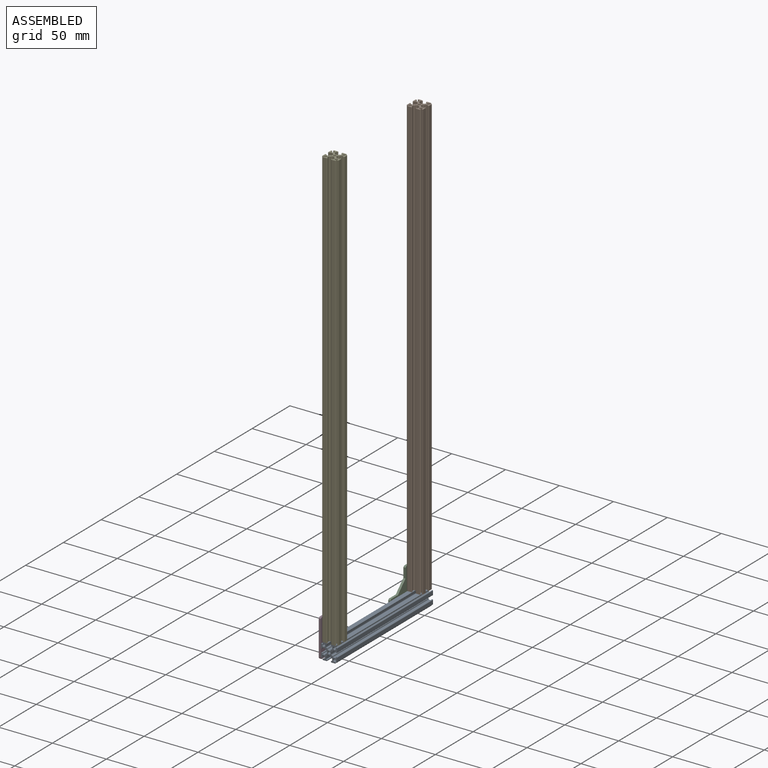
[diagram: assembled view]
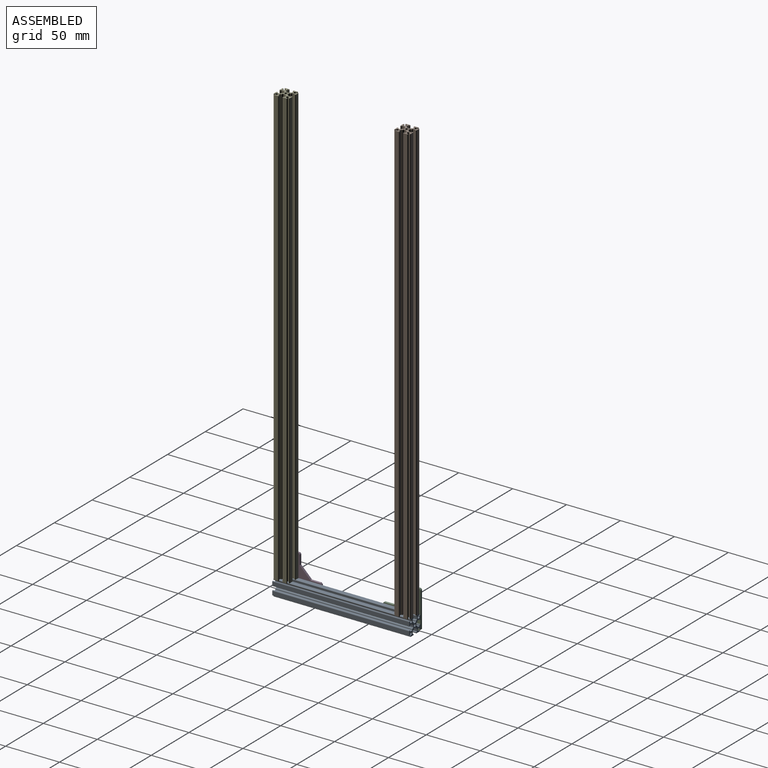
[diagram: assembled view, second angle]
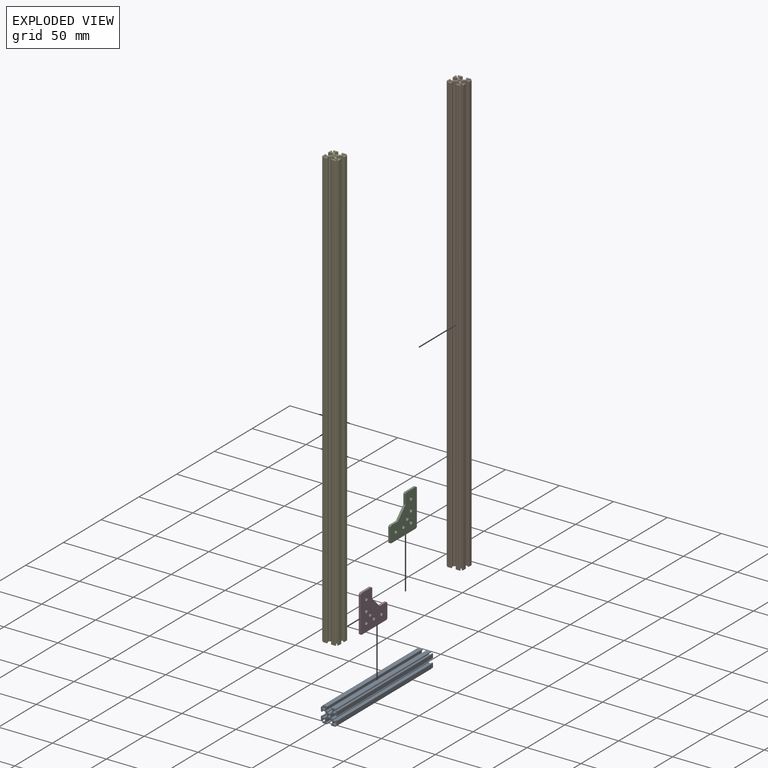
[diagram: exploded view]
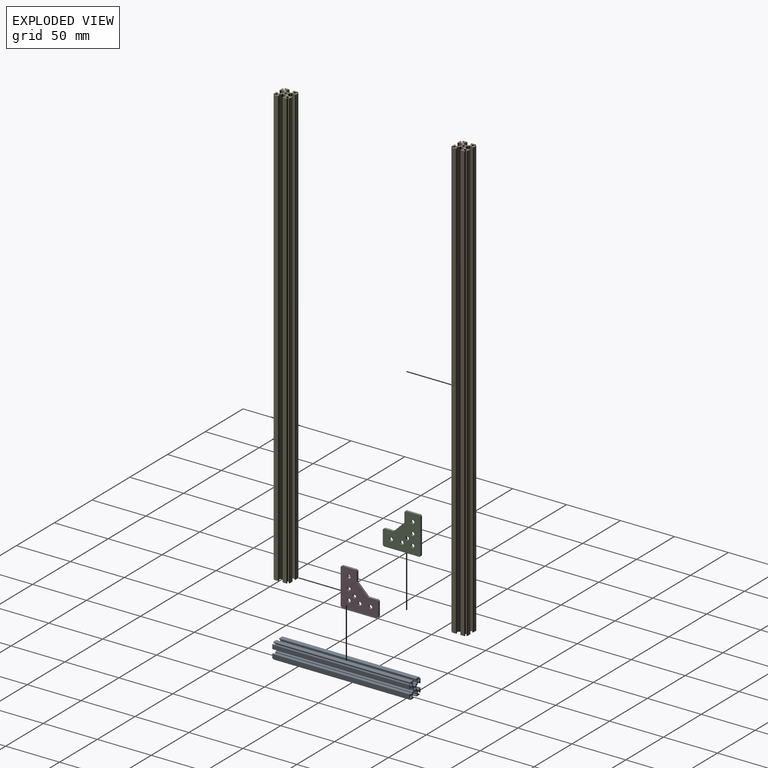
[diagram: exploded view, second angle]
ASSEMBLY  parts=5 mates=12
PART A: 115 faces, bbox 15x127x15 mm
  f0: plane 127x3.34mm, normal (1,0,0), area 423.7mm2, adj f23,f70,f112,f114
  f1: plane 127x3.34mm, normal (0,0,-1), area 423.7mm2, adj f16,f23,f77,f114
  f2: plane 127x3.34mm, normal (-1,0,0), area 423.7mm2, adj f23,f58,f109,f114
  f3: plane 127x3.34mm, normal (0,0,1), area 423.7mm2, adj f23,f65,f111,f114
  f4: plane 127x3.34mm, normal (-1,0,0), area 423.7mm2, adj f23,f62,f113,f114
  f5: plane 127x3.34mm, normal (0,0,-1), area 423.7mm2, adj f17,f23,f73,f114
  f6: plane 127x3.34mm, normal (1,0,0), area 423.7mm2, adj f23,f69,f110,f114
  f7: plane 127x3.34mm, normal (0,0,1), area 423.7mm2, adj f23,f63,f108,f114
  f8: plane 127x0.2mm, normal (-1,0,0), area 25.4mm2, adj f23,f65,f66,f114
  f9: plane 127x0.2mm, normal (1,0,0), area 25.4mm2, adj f23,f63,f64,f114
  f10: plane 127x0.2mm, normal (0,0,-1), area 25.4mm2, adj f23,f58,f59,f114
  f11: plane 127x0.2mm, normal (0,0,1), area 25.4mm2, adj f23,f61,f62,f114
  f12: plane 127x0.2mm, normal (1,0,0), area 25.4mm2, adj f23,f76,f77,f114
  f13: plane 127x0.2mm, normal (-1,0,0), area 25.4mm2, adj f23,f73,f74,f114
  f14: plane 127x0.2mm, normal (0,0,1), area 25.4mm2, adj f23,f70,f71,f114
  f15: plane 127x0.2mm, normal (0,0,-1), area 25.4mm2, adj f23,f68,f69,f114
  f16: cylinder r=0.5mm len=127mm, axis (0,1,0), area 149.6mm2, adj f1,f23,f53,f114
  f17: cylinder r=0.5mm len=127mm, axis (0,-1,0), area 149.6mm2, adj f5,f23,f102,f114
  f18: cylinder r=1.25mm len=127mm, axis (0,1,0), area 866.8mm2, adj f23,f104,f105,f114
  f19: cylinder r=1.25mm len=127mm, axis (0,1,0), area 866.8mm2, adj f23,f106,f107,f114
  f20: cylinder r=1.25mm len=127mm, axis (0,1,0), area 866.8mm2, adj f23,f52,f53,f114
  f21: cylinder r=1.25mm len=127mm, axis (0,1,0), area 866.8mm2, adj f23,f102,f103,f114
  f22: cylinder r=1.25mm len=127mm, axis (0,-1,0), area 997.5mm2, adj f23,f114
  f23: plane 15x15mm, normal (0,1,0), area 90.8mm2, adj f0,f1,f2,f3,f4,f5,f6,f7
  f24: plane 127x0.25mm, normal (0,0,1), area 31.8mm2, adj f23,f55,f80,f114
  f25: plane 127x1.2mm, normal (0,0,1), area 152.4mm2, adj f23,f86,f87,f114
  f26: plane 127x0.25mm, normal (0,0,1), area 31.8mm2, adj f23,f67,f79,f114
  f27: plane 127x2.1mm, normal (-1,0,0), area 266.7mm2, adj f23,f67,f100,f114
  f28: plane 127x0.4mm, normal (0,0,-1), area 50.8mm2, adj f23,f66,f100,f114
  f29: plane 127x0.4mm, normal (0,0,-1), area 50.8mm2, adj f23,f64,f101,f114
  f30: plane 127x2.1mm, normal (1,0,0), area 266.7mm2, adj f23,f55,f101,f114
  f31: plane 127x0.25mm, normal (-1,0,0), area 31.8mm2, adj f23,f54,f81,f114
  f32: plane 127x1.2mm, normal (-1,0,0), area 152.4mm2, adj f23,f88,f89,f114
  f33: plane 127x0.25mm, normal (-1,0,0), area 31.8mm2, adj f23,f60,f78,f114
  f34: plane 127x2.1mm, normal (0,0,-1), area 266.7mm2, adj f23,f60,f94,f114
  f35: plane 127x0.4mm, normal (1,0,0), area 50.8mm2, adj f23,f59,f94,f114
  f36: plane 127x0.4mm, normal (1,0,0), area 50.8mm2, adj f23,f61,f95,f114
  f37: plane 127x2.1mm, normal (0,0,1), area 266.7mm2, adj f23,f54,f95,f114
  f38: plane 127x0.25mm, normal (0,0,-1), area 31.8mm2, adj f23,f57,f83,f114
  f39: plane 127x1.2mm, normal (0,0,-1), area 152.4mm2, adj f23,f90,f91,f114
  f40: plane 127x0.25mm, normal (0,0,-1), area 31.8mm2, adj f23,f75,f82,f114
  f41: plane 127x2.1mm, normal (1,0,0), area 266.7mm2, adj f23,f75,f96,f114
  f42: plane 127x0.4mm, normal (0,0,1), area 50.8mm2, adj f23,f76,f96,f114
  f43: plane 127x0.4mm, normal (0,0,1), area 50.8mm2, adj f23,f74,f97,f114
  f44: plane 127x2.1mm, normal (-1,0,0), area 266.7mm2, adj f23,f57,f97,f114
  f45: plane 127x0.25mm, normal (1,0,0), area 31.8mm2, adj f23,f56,f84,f114
  f46: plane 127x1.2mm, normal (1,0,0), area 152.4mm2, adj f23,f92,f93,f114
  f47: plane 127x0.25mm, normal (1,0,0), area 31.8mm2, adj f23,f72,f85,f114
  f48: plane 127x2.1mm, normal (0,0,1), area 266.7mm2, adj f23,f72,f98,f114
  f49: plane 127x0.4mm, normal (-1,0,0), area 50.8mm2, adj f23,f71,f98,f114
  f50: plane 127x0.4mm, normal (-1,0,0), area 50.8mm2, adj f23,f68,f99,f114
  f51: plane 127x2.1mm, normal (0,0,-1), area 266.7mm2, adj f23,f56,f99,f114
  f52: plane 127x0.48mm, normal (0.71,0,-0.71), area 86.7mm2, adj f20,f23,f113,f114
  f53: plane 127x0.48mm, normal (-0.71,0,0.71), area 86.7mm2, adj f16,f20,f23,f114
  f54: cylinder r=0.5mm len=127mm, axis (0,-1,0), area 99.7mm2, adj f23,f31,f37,f114
  f55: cylinder r=0.5mm len=127mm, axis (0,-1,0), area 99.7mm2, adj f23,f24,f30,f114
  f56: cylinder r=0.5mm len=127mm, axis (0,-1,0), area 99.7mm2, adj f23,f45,f51,f114
  f57: cylinder r=0.5mm len=127mm, axis (0,-1,0), area 99.7mm2, adj f23,f38,f44,f114
  f58: cylinder r=0.5mm len=127mm, axis (0,1,0), area 99.7mm2, adj f2,f10,f23,f114
  f59: cylinder r=0.5mm len=127mm, axis (0,1,0), area 99.7mm2, adj f10,f23,f35,f114
  f60: cylinder r=0.5mm len=127mm, axis (0,-1,0), area 99.7mm2, adj f23,f33,f34,f114
  f61: cylinder r=0.5mm len=127mm, axis (0,1,0), area 99.7mm2, adj f11,f23,f36,f114
  f62: cylinder r=0.5mm len=127mm, axis (0,1,0), area 99.7mm2, adj f4,f11,f23,f114
  f63: cylinder r=0.5mm len=127mm, axis (0,1,0), area 99.7mm2, adj f7,f9,f23,f114
  f64: cylinder r=0.5mm len=127mm, axis (0,1,0), area 99.7mm2, adj f9,f23,f29,f114
  f65: cylinder r=0.5mm len=127mm, axis (0,1,0), area 99.7mm2, adj f3,f8,f23,f114
  f66: cylinder r=0.5mm len=127mm, axis (0,1,0), area 99.7mm2, adj f8,f23,f28,f114
  f67: cylinder r=0.5mm len=127mm, axis (0,-1,0), area 99.7mm2, adj f23,f26,f27,f114
  f68: cylinder r=0.5mm len=127mm, axis (0,1,0), area 99.7mm2, adj f15,f23,f50,f114
  f69: cylinder r=0.5mm len=127mm, axis (0,1,0), area 99.7mm2, adj f6,f15,f23,f114
  f70: cylinder r=0.5mm len=127mm, axis (0,1,0), area 99.7mm2, adj f0,f14,f23,f114
  f71: cylinder r=0.5mm len=127mm, axis (0,1,0), area 99.7mm2, adj f14,f23,f49,f114
  f72: cylinder r=0.5mm len=127mm, axis (0,-1,0), area 99.7mm2, adj f23,f47,f48,f114
  f73: cylinder r=0.5mm len=127mm, axis (0,1,0), area 99.7mm2, adj f5,f13,f23,f114
  f74: cylinder r=0.5mm len=127mm, axis (0,1,0), area 99.7mm2, adj f13,f23,f43,f114
  f75: cylinder r=0.5mm len=127mm, axis (0,-1,0), area 99.7mm2, adj f23,f40,f41,f114
  f76: cylinder r=0.5mm len=127mm, axis (0,1,0), area 99.7mm2, adj f12,f23,f42,f114
  f77: cylinder r=0.5mm len=127mm, axis (0,1,0), area 99.7mm2, adj f1,f12,f23,f114
  f78: cylinder r=0.5mm len=127mm, axis (0,1,0), area 99.7mm2, adj f23,f33,f88,f114
  f79: cylinder r=0.5mm len=127mm, axis (0,1,0), area 99.7mm2, adj f23,f26,f86,f114
  f80: cylinder r=0.5mm len=127mm, axis (0,1,0), area 99.7mm2, adj f23,f24,f87,f114
  f81: cylinder r=0.5mm len=127mm, axis (0,1,0), area 99.7mm2, adj f23,f31,f89,f114
  f82: cylinder r=0.5mm len=127mm, axis (0,1,0), area 99.7mm2, adj f23,f40,f90,f114
  f83: cylinder r=0.5mm len=127mm, axis (0,1,0), area 99.7mm2, adj f23,f38,f91,f114
  f84: cylinder r=0.5mm len=127mm, axis (0,1,0), area 99.7mm2, adj f23,f45,f92,f114
  f85: cylinder r=0.5mm len=127mm, axis (0,1,0), area 99.7mm2, adj f23,f47,f93,f114
  f86: cylinder r=1mm len=127mm, axis (0,-1,0), area 199.5mm2, adj f23,f25,f79,f114
  f87: cylinder r=1mm len=127mm, axis (0,-1,0), area 199.5mm2, adj f23,f25,f80,f114
  f88: cylinder r=1mm len=127mm, axis (0,-1,0), area 199.5mm2, adj f23,f32,f78,f114
  f89: cylinder r=1mm len=127mm, axis (0,-1,0), area 199.5mm2, adj f23,f32,f81,f114
  f90: cylinder r=1mm len=127mm, axis (0,-1,0), area 199.5mm2, adj f23,f39,f82,f114
  f91: cylinder r=1mm len=127mm, axis (0,-1,0), area 199.5mm2, adj f23,f39,f83,f114
  f92: cylinder r=1mm len=127mm, axis (0,-1,0), area 199.5mm2, adj f23,f46,f84,f114
  f93: cylinder r=1mm len=127mm, axis (0,-1,0), area 199.5mm2, adj f23,f46,f85,f114
  f94: cylinder r=0.2mm len=127mm, axis (0,-1,0), area 39.9mm2, adj f23,f34,f35,f114
  f95: cylinder r=0.2mm len=127mm, axis (0,-1,0), area 39.9mm2, adj f23,f36,f37,f114
  f96: cylinder r=0.2mm len=127mm, axis (0,-1,0), area 39.9mm2, adj f23,f41,f42,f114
  f97: cylinder r=0.2mm len=127mm, axis (0,-1,0), area 39.9mm2, adj f23,f43,f44,f114
  f98: cylinder r=0.2mm len=127mm, axis (0,-1,0), area 39.9mm2, adj f23,f48,f49,f114
  f99: cylinder r=0.2mm len=127mm, axis (0,-1,0), area 39.9mm2, adj f23,f50,f51,f114
  f100: cylinder r=0.2mm len=127mm, axis (0,-1,0), area 39.9mm2, adj f23,f27,f28,f114
  f101: cylinder r=0.2mm len=127mm, axis (0,-1,0), area 39.9mm2, adj f23,f29,f30,f114
  f102: plane 127x0.48mm, normal (0.71,0,0.71), area 86.7mm2, adj f17,f21,f23,f114
  f103: plane 127x0.48mm, normal (-0.71,0,-0.71), area 86.7mm2, adj f21,f23,f112,f114
  f104: plane 127x0.48mm, normal (-0.71,0,0.71), area 86.7mm2, adj f18,f23,f110,f114
  f105: plane 127x0.48mm, normal (0.71,0,-0.71), area 86.7mm2, adj f18,f23,f111,f114
  f106: plane 127x0.48mm, normal (-0.71,0,-0.71), area 86.7mm2, adj f19,f23,f108,f114
  f107: plane 127x0.48mm, normal (0.71,0,0.71), area 86.7mm2, adj f19,f23,f109,f114
  f108: cylinder r=0.5mm len=127mm, axis (0,-1,0), area 149.6mm2, adj f7,f23,f106,f114
  f109: cylinder r=0.5mm len=127mm, axis (0,1,0), area 149.6mm2, adj f2,f23,f107,f114
  f110: cylinder r=0.5mm len=127mm, axis (0,-1,0), area 149.6mm2, adj f6,f23,f104,f114
  f111: cylinder r=0.5mm len=127mm, axis (0,1,0), area 149.6mm2, adj f3,f23,f105,f114
  f112: cylinder r=0.5mm len=127mm, axis (0,1,0), area 149.6mm2, adj f0,f23,f103,f114
  f113: cylinder r=0.5mm len=127mm, axis (0,-1,0), area 149.6mm2, adj f4,f23,f52,f114
  f114: plane 15x15mm, normal (0,-1,0), area 90.8mm2, adj f0,f1,f2,f3,f4,f5,f6,f7
PART B: 115 faces, bbox 15x15x406.4 mm
  f0: plane 406.4x3.34mm, normal (1,0,0), area 1355.7mm2, adj f23,f70,f112,f114
  f1: plane 406.4x3.34mm, normal (0,-1,0), area 1355.7mm2, adj f16,f23,f77,f114
  f2: plane 406.4x3.34mm, normal (-1,0,0), area 1355.7mm2, adj f23,f58,f109,f114
  f3: plane 406.4x3.34mm, normal (0,1,0), area 1355.7mm2, adj f23,f65,f111,f114
  f4: plane 406.4x3.34mm, normal (-1,0,0), area 1355.7mm2, adj f23,f62,f113,f114
  f5: plane 406.4x3.34mm, normal (0,-1,0), area 1355.7mm2, adj f17,f23,f73,f114
  f6: plane 406.4x3.34mm, normal (1,0,0), area 1355.7mm2, adj f23,f69,f110,f114
  f7: plane 406.4x3.34mm, normal (0,1,0), area 1355.7mm2, adj f23,f63,f108,f114
  f8: plane 406.4x0.2mm, normal (-1,0,0), area 81.3mm2, adj f23,f65,f66,f114
  f9: plane 406.4x0.2mm, normal (1,0,0), area 81.3mm2, adj f23,f63,f64,f114
  f10: plane 406.4x0.2mm, normal (0,-1,0), area 81.3mm2, adj f23,f58,f59,f114
  f11: plane 406.4x0.2mm, normal (0,1,0), area 81.3mm2, adj f23,f61,f62,f114
  f12: plane 406.4x0.2mm, normal (1,0,0), area 81.3mm2, adj f23,f76,f77,f114
  f13: plane 406.4x0.2mm, normal (-1,0,0), area 81.3mm2, adj f23,f73,f74,f114
  f14: plane 406.4x0.2mm, normal (0,1,0), area 81.3mm2, adj f23,f70,f71,f114
  f15: plane 406.4x0.2mm, normal (0,-1,0), area 81.3mm2, adj f23,f68,f69,f114
  f16: cylinder r=0.5mm len=406.4mm, axis (0,0,-1), area 478.8mm2, adj f1,f23,f53,f114
  f17: cylinder r=0.5mm len=406.4mm, axis (0,0,1), area 478.8mm2, adj f5,f23,f102,f114
  f18: cylinder r=1.25mm len=406.4mm, axis (0,0,-1), area 2773.8mm2, adj f23,f104,f105,f114
  f19: cylinder r=1.25mm len=406.4mm, axis (0,0,-1), area 2773.8mm2, adj f23,f106,f107,f114
  f20: cylinder r=1.25mm len=406.4mm, axis (0,0,-1), area 2773.8mm2, adj f23,f52,f53,f114
  f21: cylinder r=1.25mm len=406.4mm, axis (0,0,-1), area 2773.8mm2, adj f23,f102,f103,f114
  f22: cylinder r=1.25mm len=406.4mm, axis (0,0,1), area 3191.9mm2, adj f23,f114
  f23: plane 15x15mm, normal (0,0,-1), area 90.8mm2, adj f0,f1,f2,f3,f4,f5,f6,f7
  f24: plane 406.4x0.25mm, normal (0,1,0), area 101.6mm2, adj f23,f55,f80,f114
  f25: plane 406.4x1.2mm, normal (0,1,0), area 487.7mm2, adj f23,f86,f87,f114
  f26: plane 406.4x0.25mm, normal (0,1,0), area 101.6mm2, adj f23,f67,f79,f114
  f27: plane 406.4x2.1mm, normal (-1,0,0), area 853.4mm2, adj f23,f67,f100,f114
  f28: plane 406.4x0.4mm, normal (0,-1,0), area 162.6mm2, adj f23,f66,f100,f114
  f29: plane 406.4x0.4mm, normal (0,-1,0), area 162.6mm2, adj f23,f64,f101,f114
  f30: plane 406.4x2.1mm, normal (1,0,0), area 853.4mm2, adj f23,f55,f101,f114
  f31: plane 406.4x0.25mm, normal (-1,0,0), area 101.6mm2, adj f23,f54,f81,f114
  f32: plane 406.4x1.2mm, normal (-1,0,0), area 487.7mm2, adj f23,f88,f89,f114
  f33: plane 406.4x0.25mm, normal (-1,0,0), area 101.6mm2, adj f23,f60,f78,f114
  f34: plane 406.4x2.1mm, normal (0,-1,0), area 853.4mm2, adj f23,f60,f94,f114
  f35: plane 406.4x0.4mm, normal (1,0,0), area 162.6mm2, adj f23,f59,f94,f114
  f36: plane 406.4x0.4mm, normal (1,0,0), area 162.6mm2, adj f23,f61,f95,f114
  f37: plane 406.4x2.1mm, normal (0,1,0), area 853.4mm2, adj f23,f54,f95,f114
  f38: plane 406.4x0.25mm, normal (0,-1,0), area 101.6mm2, adj f23,f57,f83,f114
  f39: plane 406.4x1.2mm, normal (0,-1,0), area 487.7mm2, adj f23,f90,f91,f114
  f40: plane 406.4x0.25mm, normal (0,-1,0), area 101.6mm2, adj f23,f75,f82,f114
  f41: plane 406.4x2.1mm, normal (1,0,0), area 853.4mm2, adj f23,f75,f96,f114
  f42: plane 406.4x0.4mm, normal (0,1,0), area 162.6mm2, adj f23,f76,f96,f114
  f43: plane 406.4x0.4mm, normal (0,1,0), area 162.6mm2, adj f23,f74,f97,f114
  f44: plane 406.4x2.1mm, normal (-1,0,0), area 853.4mm2, adj f23,f57,f97,f114
  f45: plane 406.4x0.25mm, normal (1,0,0), area 101.6mm2, adj f23,f56,f84,f114
  f46: plane 406.4x1.2mm, normal (1,0,0), area 487.7mm2, adj f23,f92,f93,f114
  f47: plane 406.4x0.25mm, normal (1,0,0), area 101.6mm2, adj f23,f72,f85,f114
  f48: plane 406.4x2.1mm, normal (0,1,0), area 853.4mm2, adj f23,f72,f98,f114
  f49: plane 406.4x0.4mm, normal (-1,0,0), area 162.6mm2, adj f23,f71,f98,f114
  f50: plane 406.4x0.4mm, normal (-1,0,0), area 162.6mm2, adj f23,f68,f99,f114
  f51: plane 406.4x2.1mm, normal (0,-1,0), area 853.4mm2, adj f23,f56,f99,f114
  f52: plane 406.4x0.48mm, normal (0.71,-0.71,0), area 277.5mm2, adj f20,f23,f113,f114
  f53: plane 406.4x0.48mm, normal (-0.71,0.71,0), area 277.5mm2, adj f16,f20,f23,f114
  f54: cylinder r=0.5mm len=406.4mm, axis (0,0,1), area 319.2mm2, adj f23,f31,f37,f114
  f55: cylinder r=0.5mm len=406.4mm, axis (0,0,1), area 319.2mm2, adj f23,f24,f30,f114
  f56: cylinder r=0.5mm len=406.4mm, axis (0,0,1), area 319.2mm2, adj f23,f45,f51,f114
  f57: cylinder r=0.5mm len=406.4mm, axis (0,0,1), area 319.2mm2, adj f23,f38,f44,f114
  f58: cylinder r=0.5mm len=406.4mm, axis (0,0,-1), area 319.2mm2, adj f2,f10,f23,f114
  f59: cylinder r=0.5mm len=406.4mm, axis (0,0,-1), area 319.2mm2, adj f10,f23,f35,f114
  f60: cylinder r=0.5mm len=406.4mm, axis (0,0,1), area 319.2mm2, adj f23,f33,f34,f114
  f61: cylinder r=0.5mm len=406.4mm, axis (0,0,-1), area 319.2mm2, adj f11,f23,f36,f114
  f62: cylinder r=0.5mm len=406.4mm, axis (0,0,-1), area 319.2mm2, adj f4,f11,f23,f114
  f63: cylinder r=0.5mm len=406.4mm, axis (0,0,-1), area 319.2mm2, adj f7,f9,f23,f114
  f64: cylinder r=0.5mm len=406.4mm, axis (0,0,-1), area 319.2mm2, adj f9,f23,f29,f114
  f65: cylinder r=0.5mm len=406.4mm, axis (0,0,-1), area 319.2mm2, adj f3,f8,f23,f114
  f66: cylinder r=0.5mm len=406.4mm, axis (0,0,-1), area 319.2mm2, adj f8,f23,f28,f114
  f67: cylinder r=0.5mm len=406.4mm, axis (0,0,1), area 319.2mm2, adj f23,f26,f27,f114
  f68: cylinder r=0.5mm len=406.4mm, axis (0,0,-1), area 319.2mm2, adj f15,f23,f50,f114
  f69: cylinder r=0.5mm len=406.4mm, axis (0,0,-1), area 319.2mm2, adj f6,f15,f23,f114
  f70: cylinder r=0.5mm len=406.4mm, axis (0,0,-1), area 319.2mm2, adj f0,f14,f23,f114
  f71: cylinder r=0.5mm len=406.4mm, axis (0,0,-1), area 319.2mm2, adj f14,f23,f49,f114
  f72: cylinder r=0.5mm len=406.4mm, axis (0,0,1), area 319.2mm2, adj f23,f47,f48,f114
  f73: cylinder r=0.5mm len=406.4mm, axis (0,0,-1), area 319.2mm2, adj f5,f13,f23,f114
  f74: cylinder r=0.5mm len=406.4mm, axis (0,0,-1), area 319.2mm2, adj f13,f23,f43,f114
  f75: cylinder r=0.5mm len=406.4mm, axis (0,0,1), area 319.2mm2, adj f23,f40,f41,f114
  f76: cylinder r=0.5mm len=406.4mm, axis (0,0,-1), area 319.2mm2, adj f12,f23,f42,f114
  f77: cylinder r=0.5mm len=406.4mm, axis (0,0,-1), area 319.2mm2, adj f1,f12,f23,f114
  f78: cylinder r=0.5mm len=406.4mm, axis (0,0,-1), area 319.2mm2, adj f23,f33,f88,f114
  f79: cylinder r=0.5mm len=406.4mm, axis (0,0,-1), area 319.2mm2, adj f23,f26,f86,f114
  f80: cylinder r=0.5mm len=406.4mm, axis (0,0,-1), area 319.2mm2, adj f23,f24,f87,f114
  f81: cylinder r=0.5mm len=406.4mm, axis (0,0,-1), area 319.2mm2, adj f23,f31,f89,f114
  f82: cylinder r=0.5mm len=406.4mm, axis (0,0,-1), area 319.2mm2, adj f23,f40,f90,f114
  f83: cylinder r=0.5mm len=406.4mm, axis (0,0,-1), area 319.2mm2, adj f23,f38,f91,f114
  f84: cylinder r=0.5mm len=406.4mm, axis (0,0,-1), area 319.2mm2, adj f23,f45,f92,f114
  f85: cylinder r=0.5mm len=406.4mm, axis (0,0,-1), area 319.2mm2, adj f23,f47,f93,f114
  f86: cylinder r=1mm len=406.4mm, axis (0,0,1), area 638.4mm2, adj f23,f25,f79,f114
  f87: cylinder r=1mm len=406.4mm, axis (0,0,1), area 638.4mm2, adj f23,f25,f80,f114
  f88: cylinder r=1mm len=406.4mm, axis (0,0,1), area 638.4mm2, adj f23,f32,f78,f114
  f89: cylinder r=1mm len=406.4mm, axis (0,0,1), area 638.4mm2, adj f23,f32,f81,f114
  f90: cylinder r=1mm len=406.4mm, axis (0,0,1), area 638.4mm2, adj f23,f39,f82,f114
  f91: cylinder r=1mm len=406.4mm, axis (0,0,1), area 638.4mm2, adj f23,f39,f83,f114
  f92: cylinder r=1mm len=406.4mm, axis (0,0,1), area 638.4mm2, adj f23,f46,f84,f114
  f93: cylinder r=1mm len=406.4mm, axis (0,0,1), area 638.4mm2, adj f23,f46,f85,f114
  f94: cylinder r=0.2mm len=406.4mm, axis (0,0,1), area 127.7mm2, adj f23,f34,f35,f114
  f95: cylinder r=0.2mm len=406.4mm, axis (0,0,1), area 127.7mm2, adj f23,f36,f37,f114
  f96: cylinder r=0.2mm len=406.4mm, axis (0,0,1), area 127.7mm2, adj f23,f41,f42,f114
  f97: cylinder r=0.2mm len=406.4mm, axis (0,0,1), area 127.7mm2, adj f23,f43,f44,f114
  f98: cylinder r=0.2mm len=406.4mm, axis (0,0,1), area 127.7mm2, adj f23,f48,f49,f114
  f99: cylinder r=0.2mm len=406.4mm, axis (0,0,1), area 127.7mm2, adj f23,f50,f51,f114
  f100: cylinder r=0.2mm len=406.4mm, axis (0,0,1), area 127.7mm2, adj f23,f27,f28,f114
  f101: cylinder r=0.2mm len=406.4mm, axis (0,0,1), area 127.7mm2, adj f23,f29,f30,f114
  f102: plane 406.4x0.48mm, normal (0.71,0.71,0), area 277.5mm2, adj f17,f21,f23,f114
  f103: plane 406.4x0.48mm, normal (-0.71,-0.71,0), area 277.5mm2, adj f21,f23,f112,f114
  f104: plane 406.4x0.48mm, normal (-0.71,0.71,0), area 277.5mm2, adj f18,f23,f110,f114
  f105: plane 406.4x0.48mm, normal (0.71,-0.71,0), area 277.5mm2, adj f18,f23,f111,f114
  f106: plane 406.4x0.48mm, normal (-0.71,-0.71,0), area 277.5mm2, adj f19,f23,f108,f114
  f107: plane 406.4x0.48mm, normal (0.71,0.71,0), area 277.5mm2, adj f19,f23,f109,f114
  f108: cylinder r=0.5mm len=406.4mm, axis (0,0,1), area 478.8mm2, adj f7,f23,f106,f114
  f109: cylinder r=0.5mm len=406.4mm, axis (0,0,-1), area 478.8mm2, adj f2,f23,f107,f114
  f110: cylinder r=0.5mm len=406.4mm, axis (0,0,1), area 478.8mm2, adj f6,f23,f104,f114
  f111: cylinder r=0.5mm len=406.4mm, axis (0,0,-1), area 478.8mm2, adj f3,f23,f105,f114
  f112: cylinder r=0.5mm len=406.4mm, axis (0,0,-1), area 478.8mm2, adj f0,f23,f103,f114
  f113: cylinder r=0.5mm len=406.4mm, axis (0,0,1), area 478.8mm2, adj f4,f23,f52,f114
  f114: plane 15x15mm, normal (0,0,1), area 90.8mm2, adj f0,f1,f2,f3,f4,f5,f6,f7
PART C: 20 faces, bbox 35x35x2 mm
  f0: cylinder r=1.7mm len=3.4mm, axis (0,0,1), area 21.4mm2, adj f7,f8
  f1: cylinder r=1.7mm len=3.4mm, axis (0,0,-1), area 21.4mm2, adj f7,f8
  f2: cylinder r=1.7mm len=3.4mm, axis (0,0,-1), area 21.4mm2, adj f7,f8
  f3: cylinder r=1.7mm len=3.4mm, axis (0,0,-1), area 21.4mm2, adj f7,f8
  f4: cylinder r=1.7mm len=3.4mm, axis (0,0,-1), area 21.4mm2, adj f7,f8
  f5: cylinder r=1.7mm len=3.4mm, axis (0,0,-1), area 21.4mm2, adj f7,f8
  f6: plane 9x2mm, normal (1,0,0), area 18mm2, adj f7,f8,f14,f19
  f7: plane 35x35mm, normal (0,0,1), area 818mm2, adj f0,f1,f2,f3,f4,f5,f6,f9
  f8: plane 35x35mm, normal (0,0,-1), area 818mm2, adj f0,f1,f2,f3,f4,f5,f6,f9
  f9: plane 33x2mm, normal (0,1,0), area 66mm2, adj f7,f8,f15,f17
  f10: plane 33x2mm, normal (-1,0,0), area 66mm2, adj f7,f8,f15,f18
  f11: plane 13x2mm, normal (0,-1,0), area 26mm2, adj f7,f8,f18,f19
  f12: plane 9x2mm, normal (0,-1,0), area 18mm2, adj f7,f8,f14,f16
  f13: plane 13x2mm, normal (1,0,0), area 26mm2, adj f7,f8,f16,f17
  f14: plane 10x10mm, normal (0.71,-0.71,0), area 28.3mm2, adj f6,f7,f8,f12
  f15: plane 2x1mm, normal (-0.71,0.71,0), area 2.8mm2, adj f7,f8,f9,f10
  f16: plane 2x1mm, normal (0.71,-0.71,0), area 2.8mm2, adj f7,f8,f12,f13
  f17: plane 2x1mm, normal (0.71,0.71,0), area 2.8mm2, adj f7,f8,f9,f13
  f18: plane 2x1mm, normal (-0.71,-0.71,0), area 2.8mm2, adj f7,f8,f10,f11
  f19: plane 2x1mm, normal (0.71,-0.71,0), area 2.8mm2, adj f6,f7,f8,f11
PART D: same geometry as C
PART E: same geometry as B
PLACE A rot(axis=(0,1,0),0deg) t=(-38.45,-237.43,16.52)mm
PLACE B rot(axis=(0.18,0.98,0.05),0deg) t=(-38.45,-244.93,24.02)mm
PLACE C rot(axis=(0,-1,0),90deg) t=(-45.95,-244.93,16.52)mm
PLACE D rot(axis=(-0.58,-0.58,0.58),120deg) t=(-45.95,-356.93,16.52)mm
PLACE E rot(axis=(0,1,0),0deg) t=(-38.45,-356.93,24.02)mm
MATE planar C.f10 <-> A.f1  axis (0,0,-1) through (-46.95,-254.93,9.02)mm
MATE planar A.f2 <-> C.f5  axis (-1,0,0) through (-45.95,-300.93,20.44)mm
MATE planar A.f7 <-> E.f22  axis (0,0,1) through (-42.37,-300.93,24.02)mm
MATE planar A.f22 <-> B.f3  axis (0,1,0) through (-38.45,-237.43,16.52)mm
MATE planar D.f10 <-> E.f1  axis (0,-1,0) through (-46.95,-364.43,26.52)mm
MATE planar D.f0 <-> E.f2  axis (1,0,0) through (-45.95,-351.93,21.52)mm
MATE planar E.f5 <-> A.f22  axis (0,-1,0) through (-34.54,-364.43,227.22)mm
MATE planar B.f7 <-> C.f9  axis (0,1,0) through (-42.37,-237.43,227.22)mm
MATE planar D.f1 <-> A.f2  axis (1,0,0) through (-45.95,-336.93,16.52)mm
MATE planar A.f3 <-> B.f23  axis (0,0,1) through (-34.54,-300.93,24.02)mm
MATE planar D.f9 <-> A.f1  axis (0,0,-1) through (-46.95,-346.93,9.02)mm
MATE planar A.f4 <-> B.f4  axis (-1,0,0) through (-45.95,-300.93,12.61)mm
